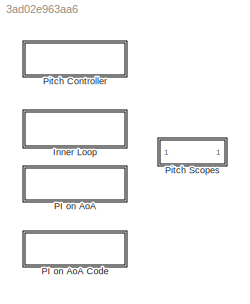
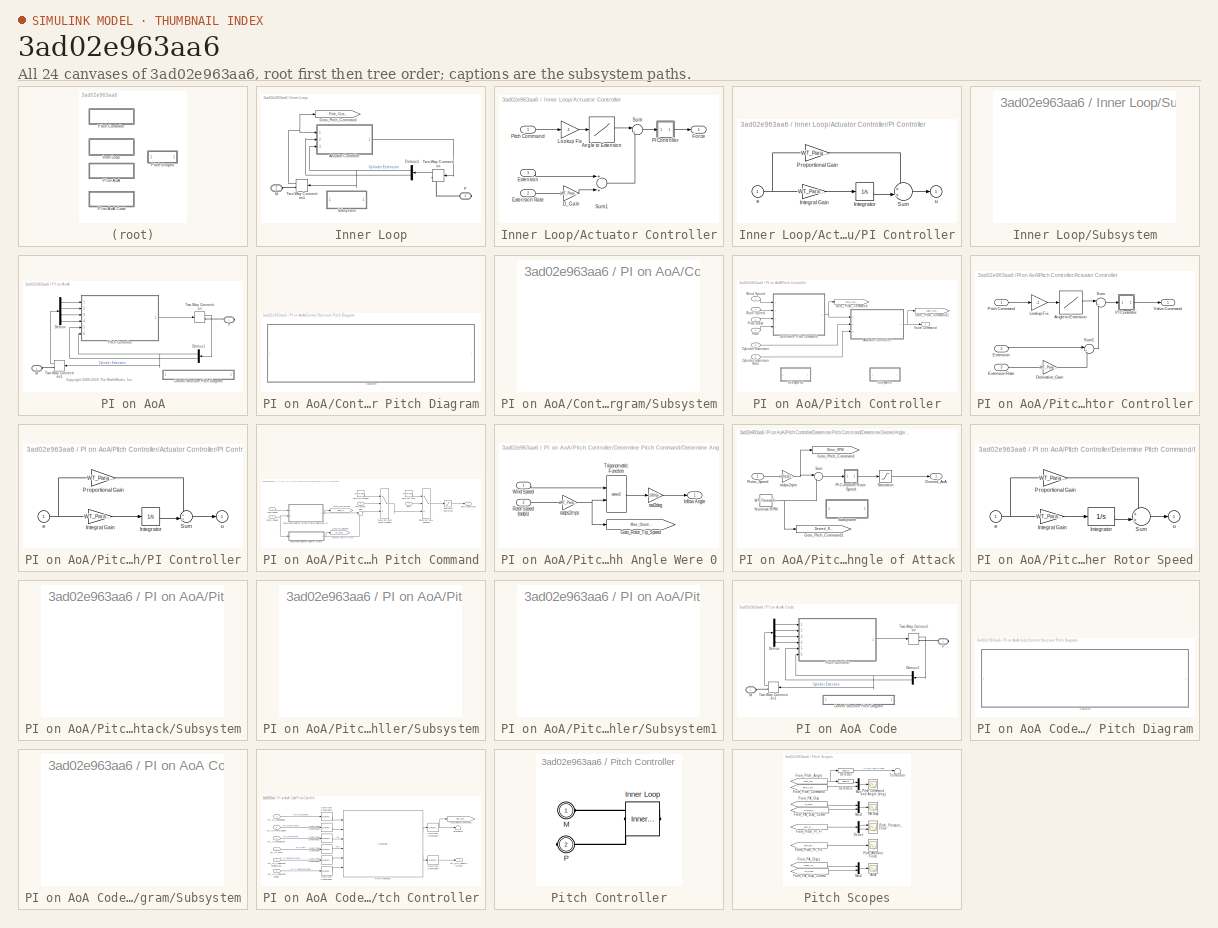
[diagram: thumbnail index - all 24 canvases of the model, root first then tree order]
MODEL slx_3ad02e963aa6
KIND library
CONFIG AbsTol = auto
CONFIG EnableMultiTasking = on
CONFIG FixedStep = auto
CONFIG MaxStep = auto
CONFIG MinStep = auto
CONFIG RelTol = 1e-3
CONFIG SampleTimeConstraint = Unconstrained
CONFIG Solver = ode45
CONFIG SolverName = ode45
CONFIG StartTime = 0.0
CONFIG StopTime = 10.0
BLOCK [SubSystem] Inner Loop
  Ports = [0, 0, 0, 0, 0, 1, 1]
  RequestExecContextInheritance = off
  Variant = off
BLOCK [SubSystem] Inner Loop/Actuator Controller
  Ports = [3, 1]
  RequestExecContextInheritance = off
  Variant = off
BLOCK [Lookup] Inner Loop/Actuator Controller/Angle to Extension
  InputValues = -Actuator_Lookup.angle
  SaturateOnIntegerOverflow = off
  Table = Actuator_Lookup.extension
BLOCK [Gain] Inner Loop/Actuator Controller/D_Gain
  Gain = WT_Params.Pitch_Controller.D_Gain
  OutDataTypeStr = Inherit: Inherit via internal rule
  ParamDataTypeStr = Inherit: Inherit via internal rule
  SaturateOnIntegerOverflow = off
BLOCK [Inport] Inner Loop/Actuator Controller/Extension
  IconDisplay = Port number
  Port = 3
BLOCK [Inport] Inner Loop/Actuator Controller/Extension Rate
  IconDisplay = Port number
  Port = 2
BLOCK [Outport] Inner Loop/Actuator Controller/Force
  IconDisplay = Port number
BLOCK [Gain] Inner Loop/Actuator Controller/Lookup Fix
  Gain = -1
  OutDataTypeStr = Inherit: Inherit via internal rule
  ParamDataTypeStr = Inherit: Inherit via internal rule
  SaturateOnIntegerOverflow = off
BLOCK [SubSystem] Inner Loop/Actuator Controller/PI Controller
  Ports = [1, 1]
  RequestExecContextInheritance = off
  Variant = off
BLOCK [Gain] Inner Loop/Actuator Controller/PI Controller/Integral Gain
  Gain = WT_Params.Pitch_Controller.I_Gain
BLOCK [Integrator] Inner Loop/Actuator Controller/PI Controller/Integrator
  Ports = [1, 1]
BLOCK [Gain] Inner Loop/Actuator Controller/PI Controller/Proportional Gain
  Gain = WT_Params.Pitch_Controller.P_Gain
BLOCK [Sum] Inner Loop/Actuator Controller/PI Controller/Sum
  IconShape = round
  Inputs = ++|
  Ports = [2, 1]
BLOCK [Inport] Inner Loop/Actuator Controller/PI Controller/e
  IconDisplay = Port number
BLOCK [Outport] Inner Loop/Actuator Controller/PI Controller/u
  IconDisplay = Port number
  InitialOutput = 0
BLOCK [Inport] Inner Loop/Actuator Controller/Pitch Command
  IconDisplay = Port number
BLOCK [Sum] Inner Loop/Actuator Controller/Sum
  IconShape = round
  InputSameDT = off
  Inputs = |+-
  OutDataTypeStr = Inherit: Inherit via internal rule
  Ports = [2, 1]
  SaturateOnIntegerOverflow = off
BLOCK [Sum] Inner Loop/Actuator Controller/Sum1
  InputSameDT = off
  OutDataTypeStr = Inherit: Inherit via internal rule
  Ports = [2, 1]
  SaturateOnIntegerOverflow = off
BLOCK [Demux] Inner Loop/Demux1
  DisplayOption = bar
  Outputs = 2
  Ports = [1, 2]
BLOCK [Goto] Inner Loop/Goto_Pitch_Command
  GotoTag = Pitch_Command
  TagVisibility = global
BLOCK [PMIOPort] Inner Loop/M
  Port = 2
  Side = Left
  Tag = PMCPort
BLOCK [PMIOPort] Inner Loop/P
  Port = 1
  Side = Right
  Tag = PMCPort
BLOCK [SubSystem] Inner Loop/Subsystem
  Ports = []
  RequestExecContextInheritance = off
  Variant = off
BLOCK [TwoWayConnection] Inner Loop/Two-Way Connection
  Ports = [1, 1, 0, 0, 0, 0, 1]
BLOCK [TwoWayConnection] Inner Loop/Two-Way Connection1
  Ports = [1, 1, 0, 0, 0, 0, 1]
BLOCK [SubSystem] PI on AoA
  Ports = [0, 0, 0, 0, 0, 1, 1]
  RequestExecContextInheritance = off
  Variant = off
BLOCK [SubSystem] PI on AoA Code
  Ports = [0, 0, 0, 0, 0, 1, 1]
  RequestExecContextInheritance = off
  Variant = off
BLOCK [SubSystem] PI on AoA Code/Control Structure Pitch Diagram
  Ports = []
  RequestExecContextInheritance = off
  Variant = off
BLOCK [SubSystem] PI on AoA Code/Control Structure Pitch Diagram/Subsystem
  Ports = []
  RequestExecContextInheritance = off
  Variant = off
BLOCK [Demux] PI on AoA Code/Demux
  DisplayOption = bar
  Ports = [1, 4]
BLOCK [Demux] PI on AoA Code/Demux1
  DisplayOption = bar
  Outputs = 2
  Ports = [1, 2]
BLOCK [PMIOPort] PI on AoA Code/M
  Port = 2
  Side = Left
  Tag = PMCPort
BLOCK [PMIOPort] PI on AoA Code/P
  Port = 1
  Side = Right
  Tag = PMCPort
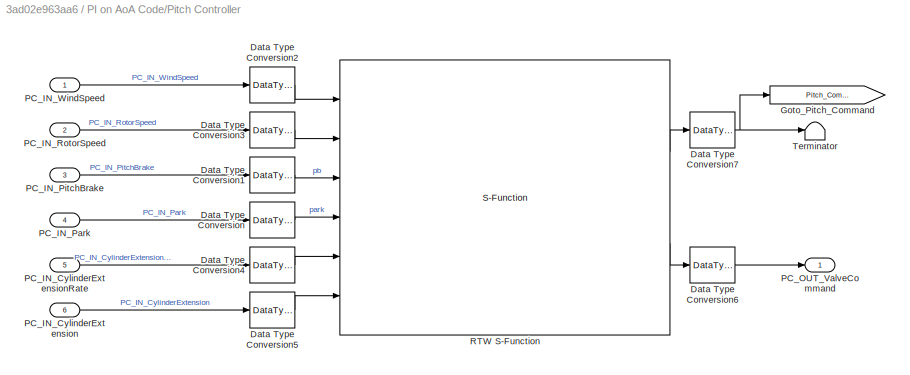
BLOCK [SubSystem] PI on AoA Code/Pitch Controller
  Ports = [6, 1]
  RequestExecContextInheritance = off
  Variant = off
BLOCK [DataTypeConversion] PI on AoA Code/Pitch Controller/Data Type Conversion
  OutDataTypeStr = boolean
  RndMeth = Floor
  SaturateOnIntegerOverflow = off
BLOCK [DataTypeConversion] PI on AoA Code/Pitch Controller/Data Type Conversion1
  OutDataTypeStr = boolean
  RndMeth = Floor
  SaturateOnIntegerOverflow = off
BLOCK [DataTypeConversion] PI on AoA Code/Pitch Controller/Data Type Conversion2
  OutDataTypeStr = single
  RndMeth = Floor
  SaturateOnIntegerOverflow = off
BLOCK [DataTypeConversion] PI on AoA Code/Pitch Controller/Data Type Conversion3
  OutDataTypeStr = single
  RndMeth = Floor
  SaturateOnIntegerOverflow = off
BLOCK [DataTypeConversion] PI on AoA Code/Pitch Controller/Data Type Conversion4
  OutDataTypeStr = single
  RndMeth = Floor
  SaturateOnIntegerOverflow = off
BLOCK [DataTypeConversion] PI on AoA Code/Pitch Controller/Data Type Conversion5
  OutDataTypeStr = single
  RndMeth = Floor
  SaturateOnIntegerOverflow = off
BLOCK [DataTypeConversion] PI on AoA Code/Pitch Controller/Data Type Conversion6
  OutDataTypeStr = double
  RndMeth = Floor
  SaturateOnIntegerOverflow = off
BLOCK [DataTypeConversion] PI on AoA Code/Pitch Controller/Data Type Conversion7
  OutDataTypeStr = double
  RndMeth = Floor
  SaturateOnIntegerOverflow = off
BLOCK [Goto] PI on AoA Code/Pitch Controller/Goto_Pitch_Command
  GotoTag = Pitch_Command
  TagVisibility = global
BLOCK [Inport] PI on AoA Code/Pitch Controller/PC_IN_CylinderExtension
  IconDisplay = Port number
  OutDataTypeStr = double
  Port = 6
  PortDimensions = 3
BLOCK [Inport] PI on AoA Code/Pitch Controller/PC_IN_CylinderExtensionRate
  IconDisplay = Port number
  OutDataTypeStr = double
  Port = 5
  PortDimensions = 3
BLOCK [Inport] PI on AoA Code/Pitch Controller/PC_IN_Park
  IconDisplay = Port number
  OutDataTypeStr = double
  Port = 4
BLOCK [Inport] PI on AoA Code/Pitch Controller/PC_IN_PitchBrake
  IconDisplay = Port number
  OutDataTypeStr = double
  Port = 3
BLOCK [Inport] PI on AoA Code/Pitch Controller/PC_IN_RotorSpeed
  IconDisplay = Port number
  OutDataTypeStr = double
  Port = 2
BLOCK [Inport] PI on AoA Code/Pitch Controller/PC_IN_WindSpeed
  IconDisplay = Port number
  OutDataTypeStr = double
BLOCK [Outport] PI on AoA Code/Pitch Controller/PC_OUT_ValveCommand
  IconDisplay = Port number
  OutDataTypeStr = double
BLOCK [S-Function] PI on AoA Code/Pitch Controller/RTW S-Function
  CopyFcn = if ~strcmp(get_param(gcb,'Linkstatus'),'none') && ...\n~strcmp(get_param(gcb,'Linkstatus'),'implicit')      \n  set_param(gcb,'LinkStatus','none');                \nend
  EnableBusSupport = off
  FunctionName = Pitch_Controller_Generated_SFunc_sf
  Parameters = sfcnParam1, sfcnParam2, sfcnParam3, sfcnParam4, sfcnParam5, sfcnParam6, sfcnParam7, sfcnParam8, sfcnParam9, sfcnParam10
  Ports = [6, 2]
  SFcnIsStateOwnerBlock = off
  SFunctionDeploymentMode = off
BLOCK [Terminator] PI on AoA Code/Pitch Controller/Terminator
BLOCK [TwoWayConnection] PI on AoA Code/Two-Way Connection
  Ports = [1, 1, 0, 0, 0, 0, 1]
BLOCK [TwoWayConnection] PI on AoA Code/Two-Way Connection1
  Ports = [1, 1, 0, 0, 0, 0, 1]
BLOCK [SubSystem] PI on AoA/Control Structure Pitch Diagram
  Ports = []
  RequestExecContextInheritance = off
  Variant = off
BLOCK [SubSystem] PI on AoA/Control Structure Pitch Diagram/Subsystem
  Ports = []
  RequestExecContextInheritance = off
  Variant = off
BLOCK [Demux] PI on AoA/Demux
  DisplayOption = bar
  Ports = [1, 4]
BLOCK [Demux] PI on AoA/Demux1
  DisplayOption = bar
  Outputs = 2
  Ports = [1, 2]
BLOCK [PMIOPort] PI on AoA/M
  Port = 2
  Side = Left
  Tag = PMCPort
BLOCK [PMIOPort] PI on AoA/P
  Port = 1
  Side = Right
  Tag = PMCPort
BLOCK [SubSystem] PI on AoA/Pitch Controller
  Ports = [6, 1]
  RequestExecContextInheritance = off
  Variant = off
BLOCK [SubSystem] PI on AoA/Pitch Controller/Actuator Controller
  Ports = [3, 1]
  RequestExecContextInheritance = off
  Variant = off
BLOCK [Lookup] PI on AoA/Pitch Controller/Actuator Controller/Angle to Extension
  InputValues = -Actuator_Lookup.angle
  LookUpMeth = Interpolation-Use End Values
  SaturateOnIntegerOverflow = off
  Table = Actuator_Lookup.extension
BLOCK [Gain] PI on AoA/Pitch Controller/Actuator Controller/Derivative_Gain
  Gain = WT_Params.Pitch_Controller.D_Gain
  OutDataTypeStr = Inherit: Inherit via internal rule
  ParamDataTypeStr = Inherit: Inherit via internal rule
  SaturateOnIntegerOverflow = off
BLOCK [Inport] PI on AoA/Pitch Controller/Actuator Controller/Extension
  IconDisplay = Port number
  Port = 2
BLOCK [Inport] PI on AoA/Pitch Controller/Actuator Controller/Extension Rate
  IconDisplay = Port number
  Port = 3
BLOCK [Gain] PI on AoA/Pitch Controller/Actuator Controller/Lookup Fix
  Gain = -1
  OutDataTypeStr = Inherit: Inherit via internal rule
  ParamDataTypeStr = Inherit: Inherit via internal rule
  SaturateOnIntegerOverflow = off
BLOCK [SubSystem] PI on AoA/Pitch Controller/Actuator Controller/PI Controller
  Ports = [1, 1]
  RequestExecContextInheritance = off
  Variant = off
BLOCK [Gain] PI on AoA/Pitch Controller/Actuator Controller/PI Controller/Integral Gain
  Gain = WT_Params.Pitch_Controller.I_Gain
BLOCK [Integrator] PI on AoA/Pitch Controller/Actuator Controller/PI Controller/Integrator
  Ports = [1, 1]
BLOCK [Gain] PI on AoA/Pitch Controller/Actuator Controller/PI Controller/Proportional Gain
  Gain = WT_Params.Pitch_Controller.P_Gain
BLOCK [Sum] PI on AoA/Pitch Controller/Actuator Controller/PI Controller/Sum
  IconShape = round
  Inputs = ++|
  Ports = [2, 1]
BLOCK [Inport] PI on AoA/Pitch Controller/Actuator Controller/PI Controller/e
  IconDisplay = Port number
BLOCK [Outport] PI on AoA/Pitch Controller/Actuator Controller/PI Controller/u
  IconDisplay = Port number
  InitialOutput = 0
BLOCK [Inport] PI on AoA/Pitch Controller/Actuator Controller/Pitch Command
  IconDisplay = Port number
BLOCK [Sum] PI on AoA/Pitch Controller/Actuator Controller/Sum
  IconShape = round
  InputSameDT = off
  Inputs = |+-
  OutDataTypeStr = Inherit: Inherit via internal rule
  Ports = [2, 1]
  SaturateOnIntegerOverflow = off
BLOCK [Sum] PI on AoA/Pitch Controller/Actuator Controller/Sum1
  IconShape = round
  InputSameDT = off
  Inputs = |++
  OutDataTypeStr = Inherit: Inherit via internal rule
  Ports = [2, 1]
  SaturateOnIntegerOverflow = off
BLOCK [Outport] PI on AoA/Pitch Controller/Actuator Controller/Valve Command
  IconDisplay = Port number
BLOCK [Inport] PI on AoA/Pitch Controller/Cylinder Extension
  IconDisplay = Port number
  Port = 6
BLOCK [Inport] PI on AoA/Pitch Controller/Cylinder Extension Rate
  IconDisplay = Port number
  Port = 5
BLOCK [SubSystem] PI on AoA/Pitch Controller/Determine Pitch Command
  Ports = [4, 1]
  RequestExecContextInheritance = off
  Variant = off
BLOCK [Switch] PI on AoA/Pitch Controller/Determine Pitch Command/Check For Park Condition
  Criteria = u2 ~= 0
  InputSameDT = off
  SaturateOnIntegerOverflow = off
BLOCK [Switch] PI on AoA/Pitch Controller/Determine Pitch Command/Check For Pitch Brake Condition
  Criteria = u2 ~= 0
  InputSameDT = off
  SaturateOnIntegerOverflow = off
BLOCK [SubSystem] PI on AoA/Pitch Controller/Determine Pitch Command/Determine Angle of Attack if Pitch Angle Were 0
  Ports = [2, 1]
  RequestExecContextInheritance = off
  Variant = off
BLOCK [Goto] PI on AoA/Pitch Controller/Determine Pitch Command/Determine Angle of Attack if Pitch Angle Were 0/Goto_Rotor_Tip_Speed
  GotoTag = Max_Chord_Speed
  TagVisibility = global
BLOCK [Outport] PI on AoA/Pitch Controller/Determine Pitch Command/Determine Angle of Attack if Pitch Angle Were 0/Inflow Angle
  IconDisplay = Port number
BLOCK [Inport] PI on AoA/Pitch Controller/Determine Pitch Command/Determine Angle of Attack if Pitch Angle Were 0/Rotor Speed (radps)
  IconDisplay = Port number
  Port = 2
BLOCK [Trigonometry] PI on AoA/Pitch Controller/Determine Pitch Command/Determine Angle of Attack if Pitch Angle Were 0/Trigonometric Function
  Operator = atan2
  Ports = [2, 1]
BLOCK [Inport] PI on AoA/Pitch Controller/Determine Pitch Command/Determine Angle of Attack if Pitch Angle Were 0/Wind Speed
  IconDisplay = Port number
BLOCK [Gain] PI on AoA/Pitch Controller/Determine Pitch Command/Determine Angle of Attack if Pitch Angle Were 0/rad2deg
  Gain = 180/pi
  OutDataTypeStr = Inherit: Inherit via internal rule
  ParamDataTypeStr = Inherit: Inherit via internal rule
  SaturateOnIntegerOverflow = off
BLOCK [Gain] PI on AoA/Pitch Controller/Determine Pitch Command/Determine Angle of Attack if Pitch Angle Were 0/radps2mps
  Gain = WT_Params.Blade.length
  OutDataTypeStr = Inherit: Inherit via internal rule
  ParamDataTypeStr = Inherit: Inherit via internal rule
  SaturateOnIntegerOverflow = off
BLOCK [SubSystem] PI on AoA/Pitch Controller/Determine Pitch Command/Determine Desired Angle of Attack
  Ports = [1, 1]
  RequestExecContextInheritance = off
  Variant = off
BLOCK [Outport] PI on AoA/Pitch Controller/Determine Pitch Command/Determine Desired Angle of Attack/Desired_AoA
  IconDisplay = Port number
BLOCK [Goto] PI on AoA/Pitch Controller/Determine Pitch Command/Determine Desired Angle of Attack/Goto_Pitch_Command
  GotoTag = Rotor_RPM
  TagVisibility = global
BLOCK [Goto] PI on AoA/Pitch Controller/Determine Pitch Command/Determine Desired Angle of Attack/Goto_Pitch_Command1
  GotoTag = Desired_Rotor_RPM
  TagVisibility = global
BLOCK [Constant] PI on AoA/Pitch Controller/Determine Pitch Command/Determine Desired Angle of Attack/Nominal RPM
  Value = WT_Params.Rotor.nominal_rpm
BLOCK [SubSystem] PI on AoA/Pitch Controller/Determine Pitch Command/Determine Desired Angle of Attack/PI Controller Rotor Speed
  Ports = [1, 1]
  RequestExecContextInheritance = off
  Variant = off
BLOCK [Gain] PI on AoA/Pitch Controller/Determine Pitch Command/Determine Desired Angle of Attack/PI Controller Rotor Speed/Integral Gain
  Gain = WT_Params.Pitch_Controller.Angle_Of_Attack.I_Gain
BLOCK [Integrator] PI on AoA/Pitch Controller/Determine Pitch Command/Determine Desired Angle of Attack/PI Controller Rotor Speed/Integrator
  LimitOutput = on
  LowerSaturationLimit = -WT_Params.Pitch_Controller.Angle_Of_Attack.max_angle
  Ports = [1, 1]
  UpperSaturationLimit = WT_Params.Pitch_Controller.Angle_Of_Attack.max_angle
BLOCK [Gain] PI on AoA/Pitch Controller/Determine Pitch Command/Determine Desired Angle of Attack/PI Controller Rotor Speed/Proportional Gain
  Gain = WT_Params.Pitch_Controller.Angle_Of_Attack.P_Gain
BLOCK [Sum] PI on AoA/Pitch Controller/Determine Pitch Command/Determine Desired Angle of Attack/PI Controller Rotor Speed/Sum
  IconShape = round
  Inputs = ++|
  Ports = [2, 1]
BLOCK [Inport] PI on AoA/Pitch Controller/Determine Pitch Command/Determine Desired Angle of Attack/PI Controller Rotor Speed/e
  IconDisplay = Port number
BLOCK [Outport] PI on AoA/Pitch Controller/Determine Pitch Command/Determine Desired Angle of Attack/PI Controller Rotor Speed/u
  IconDisplay = Port number
  InitialOutput = 0
BLOCK [Inport] PI on AoA/Pitch Controller/Determine Pitch Command/Determine Desired Angle of Attack/Rotor_Speed
  IconDisplay = Port number
BLOCK [Saturate] PI on AoA/Pitch Controller/Determine Pitch Command/Determine Desired Angle of Attack/Saturation
  InputPortMap = u0
  LowerLimit = -inf
  Ports = [1, 1]
  UpperLimit = WT_Params.Pitch_Controller.Angle_Of_Attack.max_angle
BLOCK [SubSystem] PI on AoA/Pitch Controller/Determine Pitch Command/Determine Desired Angle of Attack/Subsystem
  Ports = []
  RequestExecContextInheritance = off
  Variant = off
BLOCK [Sum] PI on AoA/Pitch Controller/Determine Pitch Command/Determine Desired Angle of Attack/Sum
  IconShape = round
  InputSameDT = off
  Inputs = |-+
  OutDataTypeStr = Inherit: Inherit via internal rule
  Ports = [2, 1]
  SaturateOnIntegerOverflow = off
BLOCK [Gain] PI on AoA/Pitch Controller/Determine Pitch Command/Determine Desired Angle of Attack/radps2rpm
  Gain = radps2rpm
  OutDataTypeStr = Inherit: Inherit via internal rule
  ParamDataTypeStr = Inherit: Inherit via internal rule
  SaturateOnIntegerOverflow = off
BLOCK [Goto] PI on AoA/Pitch Controller/Determine Pitch Command/Goto_AoA_Current
  GotoTag = Inflow_Angle
  TagVisibility = global
BLOCK [Goto] PI on AoA/Pitch Controller/Determine Pitch Command/Goto_AoA_Desired
  GotoTag = AoA_Desired
  TagVisibility = global
BLOCK [Saturate] PI on AoA/Pitch Controller/Determine Pitch Command/Limit Pitch Command
  InputPortMap = u0
  LowerLimit = WT_Params.Pitch_Controller.emergency_brake_pitch_angle
  Ports = [1, 1]
  UpperLimit = max(Actuator_Lookup.angle)
BLOCK [Inport] PI on AoA/Pitch Controller/Determine Pitch Command/Park
  IconDisplay = Port number
  Port = 4
BLOCK [Inport] PI on AoA/Pitch Controller/Determine Pitch Command/Pitch Brake
  IconDisplay = Port number
  Port = 3
BLOCK [Outport] PI on AoA/Pitch Controller/Determine Pitch Command/Pitch Command
  IconDisplay = Port number
BLOCK [Constant] PI on AoA/Pitch Controller/Determine Pitch Command/Pitch For Braking
  Value = WT_Params.Pitch_Controller.emergency_brake_pitch_angle
BLOCK [Constant] PI on AoA/Pitch Controller/Determine Pitch Command/Pitch For Park
  Value = WT_Params.Pitch_Controller.park_pitch_angle
BLOCK [Inport] PI on AoA/Pitch Controller/Determine Pitch Command/Rotor Speed
  IconDisplay = Port number
  Port = 2
BLOCK [Sum] PI on AoA/Pitch Controller/Determine Pitch Command/Sum
  IconShape = round
  InputSameDT = off
  Inputs = |+-
  OutDataTypeStr = Inherit: Inherit via internal rule
  Ports = [2, 1]
  SaturateOnIntegerOverflow = off
BLOCK [Inport] PI on AoA/Pitch Controller/Determine Pitch Command/Wind Speed
  IconDisplay = Port number
BLOCK [Goto] PI on AoA/Pitch Controller/Goto_Pitch_Command
  GotoTag = Pitch_Command
  TagVisibility = global
BLOCK [Goto] PI on AoA/Pitch Controller/Goto_Pitch_Command1
  GotoTag = Valve_Command
  TagVisibility = global
BLOCK [Inport] PI on AoA/Pitch Controller/Park
  IconDisplay = Port number
  Port = 4
BLOCK [Inport] PI on AoA/Pitch Controller/Pitch Brake
  IconDisplay = Port number
  Port = 3
BLOCK [Inport] PI on AoA/Pitch Controller/Rotor Speed
  IconDisplay = Port number
  Port = 2
BLOCK [SubSystem] PI on AoA/Pitch Controller/Subsystem
  Ports = []
  RequestExecContextInheritance = off
  Variant = off
BLOCK [SubSystem] PI on AoA/Pitch Controller/Subsystem1
  Ports = []
  RequestExecContextInheritance = off
  Variant = off
BLOCK [Outport] PI on AoA/Pitch Controller/Valve Command
  IconDisplay = Port number
BLOCK [Inport] PI on AoA/Pitch Controller/Wind Speed
  IconDisplay = Port number
BLOCK [TwoWayConnection] PI on AoA/Two-Way Connection
  Ports = [1, 1, 0, 0, 0, 0, 1]
BLOCK [TwoWayConnection] PI on AoA/Two-Way Connection1
  Ports = [1, 1, 0, 0, 0, 0, 1]
BLOCK [SubSystem] Pitch Controller
  BlockChoice = Inner Loop
  MemberBlocks = Inner Loop,PI on AoA,PI on AoA Code
  Ports = [0, 0, 0, 0, 0, 1, 1]
  RequestExecContextInheritance = off
  TemplateBlock = self
  Variant = off
BLOCK [Reference] Pitch Controller/Inner Loop  REF=Pitch_Controller_Lib/Inner Loop
  Ports = [0, 0, 0, 0, 0, 1, 1]
  SourceBlock = Pitch_Controller_Lib/Inner Loop
BLOCK [PMIOPort] Pitch Controller/M
  Port = 1
  Side = Left
BLOCK [PMIOPort] Pitch Controller/P
  Port = 2
  Side = Right
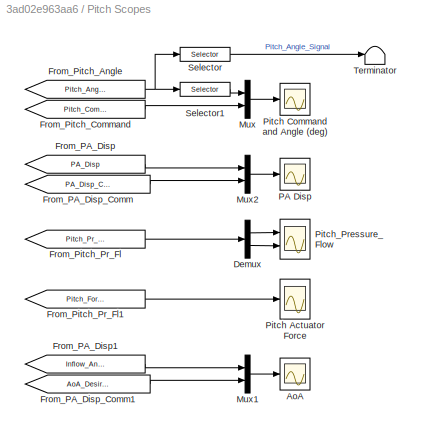
BLOCK [SubSystem] Pitch Scopes
  Ports = []
  RequestExecContextInheritance = off
  Variant = off
BLOCK [Scope] Pitch Scopes/AoA
  NumInputPorts = 1
  Ports = [1]
  ScopeSpecificationString = C++SS(StrPVP('Location','[38, 56, 510, 479]'),StrPVP('Open','off'),MxPVP('AxesTitles',24,'struct(''axes1'',''%<SignalLabel>'')'),StrPVP('TimeRange','10'),StrPVP('YMin','-1.6'),StrPVP('YMax','-0.9'),StrPVP('SaveName','ScopeData2'),StrPVP('DataFormat','StructureWithTime'),StrPVP('LimitDataPoints','off'),StrPVP('BlockParamSampleTime','0'),StrPVP('DataLoggingDecimation','1'),StrPVP('BlockParamSampleIn...<+253ch>
BLOCK [Demux] Pitch Scopes/Demux
  DisplayOption = bar
  Outputs = [2 1]
  Ports = [1, 2]
BLOCK [From] Pitch Scopes/From_PA_Disp
  CloseFcn = tagdialog Close
  GotoTag = PA_Disp
BLOCK [From] Pitch Scopes/From_PA_Disp1
  CloseFcn = tagdialog Close
  GotoTag = Inflow_Angle
  TagVisibility = global
BLOCK [From] Pitch Scopes/From_PA_Disp_Comm
  CloseFcn = tagdialog Close
  GotoTag = PA_Disp_Comm
BLOCK [From] Pitch Scopes/From_PA_Disp_Comm1
  CloseFcn = tagdialog Close
  GotoTag = AoA_Desired
  TagVisibility = global
BLOCK [From] Pitch Scopes/From_Pitch_Angle
  CloseFcn = tagdialog Close
  GotoTag = Pitch_Angle
  TagVisibility = global
BLOCK [From] Pitch Scopes/From_Pitch_Command
  CloseFcn = tagdialog Close
  GotoTag = Pitch_Command
  TagVisibility = global
BLOCK [From] Pitch Scopes/From_Pitch_Pr_Fl
  CloseFcn = tagdialog Close
  GotoTag = Pitch_Pr_Fl
  TagVisibility = global
BLOCK [From] Pitch Scopes/From_Pitch_Pr_Fl1
  CloseFcn = tagdialog Close
  GotoTag = Pitch_Force
  TagVisibility = global
BLOCK [Mux] Pitch Scopes/Mux
  DisplayOption = bar
  Inputs = 2
  Ports = [2, 1]
BLOCK [Mux] Pitch Scopes/Mux1
  DisplayOption = bar
  Inputs = 2
  Ports = [2, 1]
BLOCK [Mux] Pitch Scopes/Mux2
  DisplayOption = bar
  Inputs = 2
  Ports = [2, 1]
BLOCK [Scope] Pitch Scopes/PA Disp
  NumInputPorts = 1
  Ports = [1]
  ScopeSpecificationString = C++SS(StrPVP('Location','[38, 56, 510, 479]'),StrPVP('Open','off'),MxPVP('AxesTitles',24,'struct(''axes1'',''%<SignalLabel>'')'),StrPVP('TimeRange','10'),StrPVP('YMin','-1.6'),StrPVP('YMax','-0.9'),StrPVP('SaveName','ScopeData1'),StrPVP('DataFormat','StructureWithTime'),StrPVP('LimitDataPoints','off'),StrPVP('BlockParamSampleTime','0'),StrPVP('DataLoggingDecimation','1'),StrPVP('BlockParamSampleIn...<+253ch>
BLOCK [Scope] Pitch Scopes/Pitch Actuator Force
  NumInputPorts = 1
  Ports = [1]
  ScopeSpecificationString = C++SS(StrPVP('Location','[542, 505, 1019, 709]'),StrPVP('Open','off'),StrPVP('ZoomMode','yonly'),MxPVP('AxesTitles',24,'struct(''axes1'',''%<SignalLabel>'')'),StrPVP('TimeRange','80'),StrPVP('YMin','-78125'),StrPVP('YMax','84375'),StrPVP('SaveToWorkspace','on'),StrPVP('SaveName','Pitch_Actuator_Force_DATA'),StrPVP('DataFormat','StructureWithTime'),StrPVP('LimitDataPoints','off'),StrPVP('BlockParam...<+332ch>
BLOCK [Scope] Pitch Scopes/Pitch Command and Angle (deg)
  NumInputPorts = 1
  Ports = [1]
  ScopeSpecificationString = C++SS(StrPVP('Location','[543, 270, 1016, 453]'),StrPVP('Open','off'),MxPVP('AxesTitles',24,'struct(''axes1'',''%<SignalLabel>'')'),StrPVP('TimeRange','80'),StrPVP('YMin','-20'),StrPVP('YMax','80'),StrPVP('SaveToWorkspace','on'),StrPVP('SaveName','Blade_Pitch_DATA'),StrPVP('DataFormat','StructureWithTime'),StrPVP('LimitDataPoints','off'),StrPVP('BlockParamSampleTime','0'),StrPVP('DataLoggingDecima...<+290ch>
BLOCK [Scope] Pitch Scopes/Pitch_Pressure_Flow
  NumInputPorts = 2
  Ports = [2]
  ScopeSpecificationString = C++SS(StrPVP('Location','[516, 529, 997, 989]'),StrPVP('Open','off'),MxPVP('AxesTitles',24,'struct(''axes1'',''%<SignalLabel>'',''axes2'',''%<SignalLabel>'')'),StrPVP('YMin','-5~-5'),StrPVP('YMax','20~5'),StrPVP('SaveName','ScopeData3'),StrPVP('DataFormat','StructureWithTime'),StrPVP('LimitDataPoints','off'),StrPVP('BlockParamSampleTime','0'),StrPVP('DataLoggingDecimation','1'),StrPVP('BlockParamS...<+260ch>
BLOCK [Selector] Pitch Scopes/Selector
  IndexOptions = Index vector (dialog)
  Indices = [1 ]
  InputPortWidth = 3
  OutputSizes = 1
  Ports = [1, 1]
BLOCK [Selector] Pitch Scopes/Selector1
  IndexOptions = Index vector (dialog)
  Indices = [1 ]
  InputPortWidth = 3
  OutputSizes = 1
  Ports = [1, 1]
BLOCK [Terminator] Pitch Scopes/Terminator
ANNOTATION PI on AoA: <copyright redacted>
LINE Inner Loop/Actuator Controller/Angle to Extension:1 -> Inner Loop/Actuator Controller/Sum:1
LINE Inner Loop/Actuator Controller/D_Gain:1 -> Inner Loop/Actuator Controller/Sum1:2
LINE Inner Loop/Actuator Controller/Extension Rate:1 -> Inner Loop/Actuator Controller/D_Gain:1
LINE Inner Loop/Actuator Controller/Extension:1 -> Inner Loop/Actuator Controller/Sum1:1
LINE Inner Loop/Actuator Controller/Lookup Fix:1 -> Inner Loop/Actuator Controller/Angle to Extension:1
LINE Inner Loop/Actuator Controller/PI Controller/Integral Gain:1 -> Inner Loop/Actuator Controller/PI Controller/Integrator:1
LINE Inner Loop/Actuator Controller/PI Controller/Integrator:1 -> Inner Loop/Actuator Controller/PI Controller/Sum:2
LINE Inner Loop/Actuator Controller/PI Controller/Proportional Gain:1 -> Inner Loop/Actuator Controller/PI Controller/Sum:1
LINE Inner Loop/Actuator Controller/PI Controller/Sum:1 -> Inner Loop/Actuator Controller/PI Controller/u:1
NET Inner Loop/Actuator Controller/PI Controller/e:1 -> Inner Loop/Actuator Controller/PI Controller/Integral Gain:1, Inner Loop/Actuator Controller/PI Controller/Proportional Gain:1
LINE Inner Loop/Actuator Controller/PI Controller:1 -> Inner Loop/Actuator Controller/Force:1
LINE Inner Loop/Actuator Controller/Pitch Command:1 -> Inner Loop/Actuator Controller/Lookup Fix:1
LINE Inner Loop/Actuator Controller/Sum1:1 -> Inner Loop/Actuator Controller/Sum:2
LINE Inner Loop/Actuator Controller/Sum:1 -> Inner Loop/Actuator Controller/PI Controller:1
LINE Inner Loop/Actuator Controller:1 -> Inner Loop/Two-Way Connection:1
NET Inner Loop/Demux1:1 -> Inner Loop/Actuator Controller:3, Inner Loop/Two-Way Connection1:1
LINE Inner Loop/Demux1:2 -> Inner Loop/Actuator Controller:2
NET Inner Loop/Two-Way Connection1:1 -> Inner Loop/Actuator Controller:1, Inner Loop/Goto_Pitch_Command:1
LINE Inner Loop/Two-Way Connection:1 -> Inner Loop/Demux1:1
NET PI on AoA Code/Demux1:1 -> PI on AoA Code/Pitch Controller:6, PI on AoA Code/Two-Way Connection1:1
LINE PI on AoA Code/Demux1:2 -> PI on AoA Code/Pitch Controller:5
LINE PI on AoA Code/Demux:1 -> PI on AoA Code/Pitch Controller:1
LINE PI on AoA Code/Demux:2 -> PI on AoA Code/Pitch Controller:2
LINE PI on AoA Code/Demux:3 -> PI on AoA Code/Pitch Controller:3
LINE PI on AoA Code/Demux:4 -> PI on AoA Code/Pitch Controller:4
LINE PI on AoA Code/Pitch Controller/Data Type Conversion1:1 -> PI on AoA Code/Pitch Controller/RTW S-Function:3
LINE PI on AoA Code/Pitch Controller/Data Type Conversion2:1 -> PI on AoA Code/Pitch Controller/RTW S-Function:1
LINE PI on AoA Code/Pitch Controller/Data Type Conversion3:1 -> PI on AoA Code/Pitch Controller/RTW S-Function:2
LINE PI on AoA Code/Pitch Controller/Data Type Conversion4:1 -> PI on AoA Code/Pitch Controller/RTW S-Function:5
LINE PI on AoA Code/Pitch Controller/Data Type Conversion5:1 -> PI on AoA Code/Pitch Controller/RTW S-Function:6
LINE PI on AoA Code/Pitch Controller/Data Type Conversion6:1 -> PI on AoA Code/Pitch Controller/PC_OUT_ValveCommand:1
NET PI on AoA Code/Pitch Controller/Data Type Conversion7:1 -> PI on AoA Code/Pitch Controller/Goto_Pitch_Command:1, PI on AoA Code/Pitch Controller/Terminator:1
LINE PI on AoA Code/Pitch Controller/Data Type Conversion:1 -> PI on AoA Code/Pitch Controller/RTW S-Function:4
LINE PI on AoA Code/Pitch Controller/PC_IN_CylinderExtension:1 -> PI on AoA Code/Pitch Controller/Data Type Conversion5:1
LINE PI on AoA Code/Pitch Controller/PC_IN_CylinderExtensionRate:1 -> PI on AoA Code/Pitch Controller/Data Type Conversion4:1
LINE PI on AoA Code/Pitch Controller/PC_IN_Park:1 -> PI on AoA Code/Pitch Controller/Data Type Conversion:1
LINE PI on AoA Code/Pitch Controller/PC_IN_PitchBrake:1 -> PI on AoA Code/Pitch Controller/Data Type Conversion1:1
LINE PI on AoA Code/Pitch Controller/PC_IN_RotorSpeed:1 -> PI on AoA Code/Pitch Controller/Data Type Conversion3:1
LINE PI on AoA Code/Pitch Controller/PC_IN_WindSpeed:1 -> PI on AoA Code/Pitch Controller/Data Type Conversion2:1
LINE PI on AoA Code/Pitch Controller/RTW S-Function:1 -> PI on AoA Code/Pitch Controller/Data Type Conversion7:1
LINE PI on AoA Code/Pitch Controller/RTW S-Function:2 -> PI on AoA Code/Pitch Controller/Data Type Conversion6:1
LINE PI on AoA Code/Pitch Controller:1 -> PI on AoA Code/Two-Way Connection:1
LINE PI on AoA Code/Two-Way Connection1:1 -> PI on AoA Code/Demux:1
LINE PI on AoA Code/Two-Way Connection:1 -> PI on AoA Code/Demux1:1
NET PI on AoA/Demux1:1 -> PI on AoA/Pitch Controller:6, PI on AoA/Two-Way Connection1:1
LINE PI on AoA/Demux1:2 -> PI on AoA/Pitch Controller:5
LINE PI on AoA/Demux:1 -> PI on AoA/Pitch Controller:1
LINE PI on AoA/Demux:2 -> PI on AoA/Pitch Controller:2
LINE PI on AoA/Demux:3 -> PI on AoA/Pitch Controller:3
LINE PI on AoA/Demux:4 -> PI on AoA/Pitch Controller:4
LINE PI on AoA/Pitch Controller/Actuator Controller/Angle to Extension:1 -> PI on AoA/Pitch Controller/Actuator Controller/Sum:1
LINE PI on AoA/Pitch Controller/Actuator Controller/Derivative_Gain:1 -> PI on AoA/Pitch Controller/Actuator Controller/Sum1:2
LINE PI on AoA/Pitch Controller/Actuator Controller/Extension Rate:1 -> PI on AoA/Pitch Controller/Actuator Controller/Derivative_Gain:1
LINE PI on AoA/Pitch Controller/Actuator Controller/Extension:1 -> PI on AoA/Pitch Controller/Actuator Controller/Sum1:1
LINE PI on AoA/Pitch Controller/Actuator Controller/Lookup Fix:1 -> PI on AoA/Pitch Controller/Actuator Controller/Angle to Extension:1
LINE PI on AoA/Pitch Controller/Actuator Controller/PI Controller/Integral Gain:1 -> PI on AoA/Pitch Controller/Actuator Controller/PI Controller/Integrator:1
LINE PI on AoA/Pitch Controller/Actuator Controller/PI Controller/Integrator:1 -> PI on AoA/Pitch Controller/Actuator Controller/PI Controller/Sum:2
LINE PI on AoA/Pitch Controller/Actuator Controller/PI Controller/Proportional Gain:1 -> PI on AoA/Pitch Controller/Actuator Controller/PI Controller/Sum:1
LINE PI on AoA/Pitch Controller/Actuator Controller/PI Controller/Sum:1 -> PI on AoA/Pitch Controller/Actuator Controller/PI Controller/u:1
NET PI on AoA/Pitch Controller/Actuator Controller/PI Controller/e:1 -> PI on AoA/Pitch Controller/Actuator Controller/PI Controller/Integral Gain:1, PI on AoA/Pitch Controller/Actuator Controller/PI Controller/Proportional Gain:1
LINE PI on AoA/Pitch Controller/Actuator Controller/PI Controller:1 -> PI on AoA/Pitch Controller/Actuator Controller/Valve Command:1
LINE PI on AoA/Pitch Controller/Actuator Controller/Pitch Command:1 -> PI on AoA/Pitch Controller/Actuator Controller/Lookup Fix:1
LINE PI on AoA/Pitch Controller/Actuator Controller/Sum1:1 -> PI on AoA/Pitch Controller/Actuator Controller/Sum:2
LINE PI on AoA/Pitch Controller/Actuator Controller/Sum:1 -> PI on AoA/Pitch Controller/Actuator Controller/PI Controller:1
NET PI on AoA/Pitch Controller/Actuator Controller:1 -> PI on AoA/Pitch Controller/Goto_Pitch_Command1:1, PI on AoA/Pitch Controller/Valve Command:1
LINE PI on AoA/Pitch Controller/Cylinder Extension Rate:1 -> PI on AoA/Pitch Controller/Actuator Controller:3
LINE PI on AoA/Pitch Controller/Cylinder Extension:1 -> PI on AoA/Pitch Controller/Actuator Controller:2
LINE PI on AoA/Pitch Controller/Determine Pitch Command/Check For Park Condition:1 -> PI on AoA/Pitch Controller/Determine Pitch Command/Limit Pitch Command:1
LINE PI on AoA/Pitch Controller/Determine Pitch Command/Check For Pitch Brake Condition:1 -> PI on AoA/Pitch Controller/Determine Pitch Command/Check For Park Condition:3
LINE PI on AoA/Pitch Controller/Determine Pitch Command/Determine Angle of Attack if Pitch Angle Were 0/Rotor Speed (radps):1 -> PI on AoA/Pitch Controller/Determine Pitch Command/Determine Angle of Attack if Pitch Angle Were 0/radps2mps:1
LINE PI on AoA/Pitch Controller/Determine Pitch Command/Determine Angle of Attack if Pitch Angle Were 0/Trigonometric Function:1 -> PI on AoA/Pitch Controller/Determine Pitch Command/Determine Angle of Attack if Pitch Angle Were 0/rad2deg:1
LINE PI on AoA/Pitch Controller/Determine Pitch Command/Determine Angle of Attack if Pitch Angle Were 0/Wind Speed:1 -> PI on AoA/Pitch Controller/Determine Pitch Command/Determine Angle of Attack if Pitch Angle Were 0/Trigonometric Function:1
LINE PI on AoA/Pitch Controller/Determine Pitch Command/Determine Angle of Attack if Pitch Angle Were 0/rad2deg:1 -> PI on AoA/Pitch Controller/Determine Pitch Command/Determine Angle of Attack if Pitch Angle Were 0/Inflow Angle:1
NET PI on AoA/Pitch Controller/Determine Pitch Command/Determine Angle of Attack if Pitch Angle Were 0/radps2mps:1 -> PI on AoA/Pitch Controller/Determine Pitch Command/Determine Angle of Attack if Pitch Angle Were 0/Goto_Rotor_Tip_Speed:1, PI on AoA/Pitch Controller/Determine Pitch Command/Determine Angle of Attack if Pitch Angle Were 0/Trigonometric Function:2
NET PI on AoA/Pitch Controller/Determine Pitch Command/Determine Angle of Attack if Pitch Angle Were 0:1 -> PI on AoA/Pitch Controller/Determine Pitch Command/Goto_AoA_Current:1, PI on AoA/Pitch Controller/Determine Pitch Command/Sum:1
NET PI on AoA/Pitch Controller/Determine Pitch Command/Determine Desired Angle of Attack/Nominal RPM:1 -> PI on AoA/Pitch Controller/Determine Pitch Command/Determine Desired Angle of Attack/Goto_Pitch_Command1:1, PI on AoA/Pitch Controller/Determine Pitch Command/Determine Desired Angle of Attack/Sum:2
LINE PI on AoA/Pitch Controller/Determine Pitch Command/Determine Desired Angle of Attack/PI Controller Rotor Speed/Integral Gain:1 -> PI on AoA/Pitch Controller/Determine Pitch Command/Determine Desired Angle of Attack/PI Controller Rotor Speed/Integrator:1
LINE PI on AoA/Pitch Controller/Determine Pitch Command/Determine Desired Angle of Attack/PI Controller Rotor Speed/Integrator:1 -> PI on AoA/Pitch Controller/Determine Pitch Command/Determine Desired Angle of Attack/PI Controller Rotor Speed/Sum:2
LINE PI on AoA/Pitch Controller/Determine Pitch Command/Determine Desired Angle of Attack/PI Controller Rotor Speed/Proportional Gain:1 -> PI on AoA/Pitch Controller/Determine Pitch Command/Determine Desired Angle of Attack/PI Controller Rotor Speed/Sum:1
LINE PI on AoA/Pitch Controller/Determine Pitch Command/Determine Desired Angle of Attack/PI Controller Rotor Speed/Sum:1 -> PI on AoA/Pitch Controller/Determine Pitch Command/Determine Desired Angle of Attack/PI Controller Rotor Speed/u:1
NET PI on AoA/Pitch Controller/Determine Pitch Command/Determine Desired Angle of Attack/PI Controller Rotor Speed/e:1 -> PI on AoA/Pitch Controller/Determine Pitch Command/Determine Desired Angle of Attack/PI Controller Rotor Speed/Integral Gain:1, PI on AoA/Pitch Controller/Determine Pitch Command/Determine Desired Angle of Attack/PI Controller Rotor Speed/Proportional Gain:1
LINE PI on AoA/Pitch Controller/Determine Pitch Command/Determine Desired Angle of Attack/PI Controller Rotor Speed:1 -> PI on AoA/Pitch Controller/Determine Pitch Command/Determine Desired Angle of Attack/Saturation:1
LINE PI on AoA/Pitch Controller/Determine Pitch Command/Determine Desired Angle of Attack/Rotor_Speed:1 -> PI on AoA/Pitch Controller/Determine Pitch Command/Determine Desired Angle of Attack/radps2rpm:1
LINE PI on AoA/Pitch Controller/Determine Pitch Command/Determine Desired Angle of Attack/Saturation:1 -> PI on AoA/Pitch Controller/Determine Pitch Command/Determine Desired Angle of Attack/Desired_AoA:1
LINE PI on AoA/Pitch Controller/Determine Pitch Command/Determine Desired Angle of Attack/Sum:1 -> PI on AoA/Pitch Controller/Determine Pitch Command/Determine Desired Angle of Attack/PI Controller Rotor Speed:1
NET PI on AoA/Pitch Controller/Determine Pitch Command/Determine Desired Angle of Attack/radps2rpm:1 -> PI on AoA/Pitch Controller/Determine Pitch Command/Determine Desired Angle of Attack/Goto_Pitch_Command:1, PI on AoA/Pitch Controller/Determine Pitch Command/Determine Desired Angle of Attack/Sum:1
NET PI on AoA/Pitch Controller/Determine Pitch Command/Determine Desired Angle of Attack:1 -> PI on AoA/Pitch Controller/Determine Pitch Command/Goto_AoA_Desired:1, PI on AoA/Pitch Controller/Determine Pitch Command/Sum:2
LINE PI on AoA/Pitch Controller/Determine Pitch Command/Limit Pitch Command:1 -> PI on AoA/Pitch Controller/Determine Pitch Command/Pitch Command:1
LINE PI on AoA/Pitch Controller/Determine Pitch Command/Park:1 -> PI on AoA/Pitch Controller/Determine Pitch Command/Check For Park Condition:2
LINE PI on AoA/Pitch Controller/Determine Pitch Command/Pitch Brake:1 -> PI on AoA/Pitch Controller/Determine Pitch Command/Check For Pitch Brake Condition:2
LINE PI on AoA/Pitch Controller/Determine Pitch Command/Pitch For Braking:1 -> PI on AoA/Pitch Controller/Determine Pitch Command/Check For Pitch Brake Condition:1
LINE PI on AoA/Pitch Controller/Determine Pitch Command/Pitch For Park:1 -> PI on AoA/Pitch Controller/Determine Pitch Command/Check For Park Condition:1
NET PI on AoA/Pitch Controller/Determine Pitch Command/Rotor Speed:1 -> PI on AoA/Pitch Controller/Determine Pitch Command/Determine Angle of Attack if Pitch Angle Were 0:2, PI on AoA/Pitch Controller/Determine Pitch Command/Determine Desired Angle of Attack:1
LINE PI on AoA/Pitch Controller/Determine Pitch Command/Sum:1 -> PI on AoA/Pitch Controller/Determine Pitch Command/Check For Pitch Brake Condition:3
LINE PI on AoA/Pitch Controller/Determine Pitch Command/Wind Speed:1 -> PI on AoA/Pitch Controller/Determine Pitch Command/Determine Angle of Attack if Pitch Angle Were 0:1
NET PI on AoA/Pitch Controller/Determine Pitch Command:1 -> PI on AoA/Pitch Controller/Actuator Controller:1, PI on AoA/Pitch Controller/Goto_Pitch_Command:1
LINE PI on AoA/Pitch Controller/Park:1 -> PI on AoA/Pitch Controller/Determine Pitch Command:4
LINE PI on AoA/Pitch Controller/Pitch Brake:1 -> PI on AoA/Pitch Controller/Determine Pitch Command:3
LINE PI on AoA/Pitch Controller/Rotor Speed:1 -> PI on AoA/Pitch Controller/Determine Pitch Command:2
LINE PI on AoA/Pitch Controller/Wind Speed:1 -> PI on AoA/Pitch Controller/Determine Pitch Command:1
LINE PI on AoA/Pitch Controller:1 -> PI on AoA/Two-Way Connection:1
LINE PI on AoA/Two-Way Connection1:1 -> PI on AoA/Demux:1
LINE PI on AoA/Two-Way Connection:1 -> PI on AoA/Demux1:1
LINE Pitch Scopes/Demux:1 -> Pitch Scopes/Pitch_Pressure_Flow:1
LINE Pitch Scopes/Demux:2 -> Pitch Scopes/Pitch_Pressure_Flow:2
LINE Pitch Scopes/From_PA_Disp1:1 -> Pitch Scopes/Mux1:1
LINE Pitch Scopes/From_PA_Disp:1 -> Pitch Scopes/Mux2:1
LINE Pitch Scopes/From_PA_Disp_Comm1:1 -> Pitch Scopes/Mux1:2
LINE Pitch Scopes/From_PA_Disp_Comm:1 -> Pitch Scopes/Mux2:2
NET Pitch Scopes/From_Pitch_Angle:1 -> Pitch Scopes/Selector1:1, Pitch Scopes/Selector:1
LINE Pitch Scopes/From_Pitch_Command:1 -> Pitch Scopes/Mux:2
LINE Pitch Scopes/From_Pitch_Pr_Fl1:1 -> Pitch Scopes/Pitch Actuator Force:1
LINE Pitch Scopes/From_Pitch_Pr_Fl:1 -> Pitch Scopes/Demux:1
LINE Pitch Scopes/Mux1:1 -> Pitch Scopes/AoA:1
LINE Pitch Scopes/Mux2:1 -> Pitch Scopes/PA Disp:1
LINE Pitch Scopes/Mux:1 -> Pitch Scopes/Pitch Command and Angle (deg):1
LINE Pitch Scopes/Selector1:1 -> Pitch Scopes/Mux:1
LINE Pitch Scopes/Selector:1 -> Pitch Scopes/Terminator:1
PLINE Inner Loop/M:RConn1 -- Inner Loop/Two-Way Connection1:RConn1
PLINE Inner Loop/P:RConn1 -- Inner Loop/Two-Way Connection:RConn1
PLINE PI on AoA Code/M:RConn1 -- PI on AoA Code/Two-Way Connection1:RConn1
PLINE PI on AoA Code/P:RConn1 -- PI on AoA Code/Two-Way Connection:RConn1
PLINE PI on AoA/M:RConn1 -- PI on AoA/Two-Way Connection1:RConn1
PLINE PI on AoA/P:RConn1 -- PI on AoA/Two-Way Connection:RConn1
PLINE Pitch Controller/Inner Loop:LConn1 -- Pitch Controller/P:RConn1
PLINE Pitch Controller/Inner Loop:RConn1 -- Pitch Controller/M:RConn1
note: NET lines group one-source signal fan-out (src -> all destinations, sorted); 1:1 wires keep LINE
